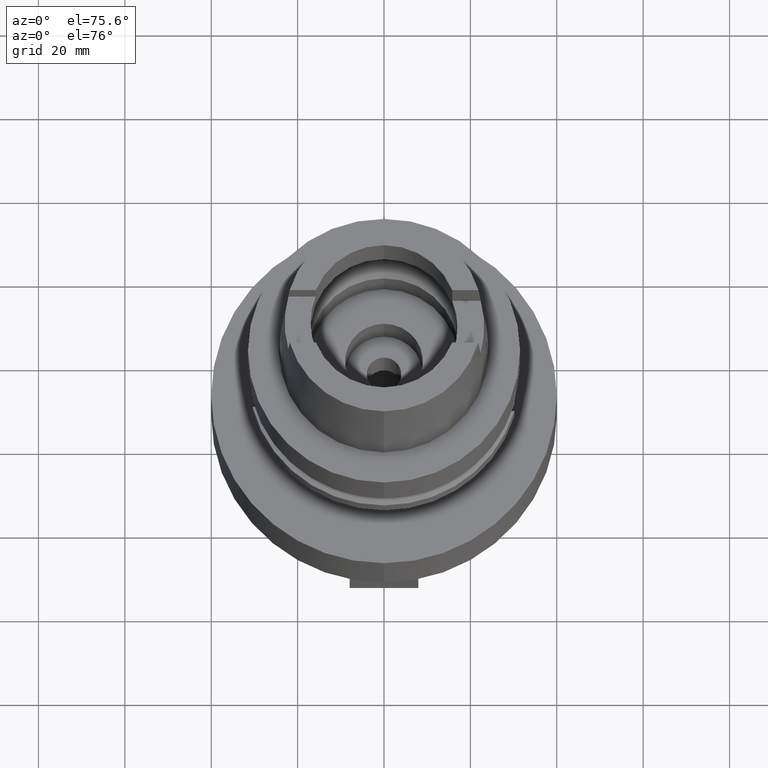
[diagram: clean part render]
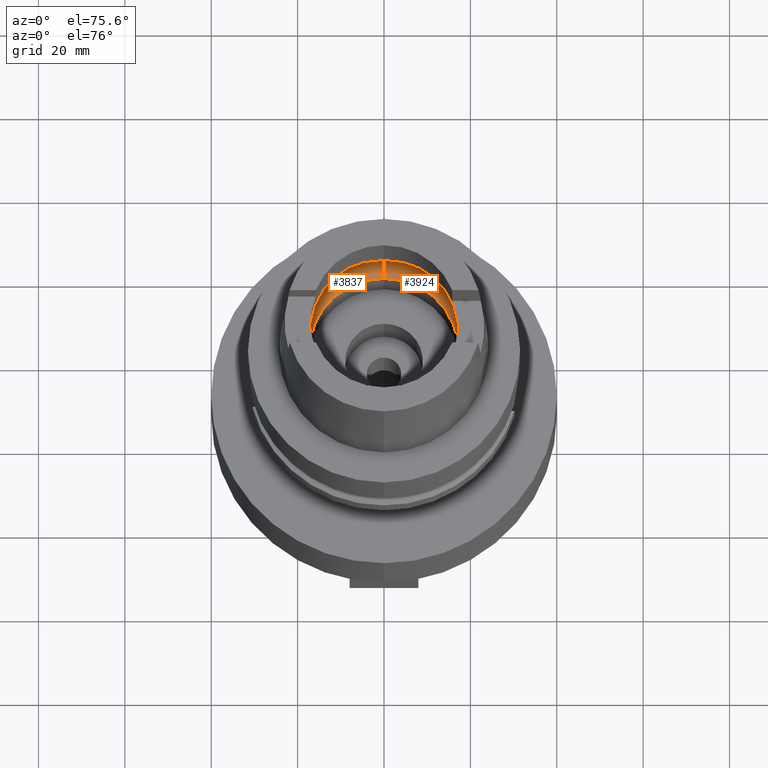
[diagram: same view with one multi-face feature highlighted, each face labeled with its STEP entity id]
A machine part, auxiliary view. The highlighted faces form ONE feature: a constant-radius fillet chain: 2 tangent blend faces with common blend radius 8 mm. The faces share edges in the B-rep.
Their STEP definitions:
[1] entity #3837 (Torus):
#1773=CARTESIAN_POINT('',(-1.984575864666E1,-2.479085262491E0,
6.186348233825E0));
#1774=CARTESIAN_POINT('',(-1.987369637762E1,-2.255436050342E0,
5.989292765742E0));
#1775=CARTESIAN_POINT('',(-1.991331581871E1,-1.759133185383E0,
5.647057889337E0));
#1776=CARTESIAN_POINT('',(-1.994018615095E1,-9.060425565455E-1,
5.323295534197E0));
#1777=CARTESIAN_POINT('',(-1.994501428476E1,-3.022936309386E-1,5.25E0));
#1778=CARTESIAN_POINT('',(-1.994501428476E1,0.E0,5.25E0));
#1783=CARTESIAN_POINT('',(-1.994501428476E1,0.E0,5.25E0));
#1784=CARTESIAN_POINT('',(-1.994501428476E1,3.022931930043E-1,5.25E0));
#1785=CARTESIAN_POINT('',(-1.994018614423E1,9.060414364937E-1,
5.323295523152E0));
#1786=CARTESIAN_POINT('',(-1.991331601589E1,1.759129035713E0,5.647055777419E0));
#1787=CARTESIAN_POINT('',(-1.987369656375E1,2.255434560347E0,5.989291452920E0));
#1788=CARTESIAN_POINT('',(-1.984575864666E1,2.479085262491E0,6.186348233825E0));
#1793=CARTESIAN_POINT('',(0.E0,0.E0,6.186348233825E0));
#1794=DIRECTION('',(0.E0,0.E0,-1.E0));
#1795=DIRECTION('',(-9.922879323328E-1,1.239542631245E-1,0.E0));
#1796=AXIS2_PLACEMENT_3D('',#1793,#1794,#1795);
#1801=CARTESIAN_POINT('',(0.E0,0.E0,1.500000000001E-1));
#1802=DIRECTION('',(0.E0,0.E0,1.E0));
#1803=DIRECTION('',(0.E0,1.E0,0.E0));
#1804=AXIS2_PLACEMENT_3D('',#1801,#1802,#1803);
#1809=CARTESIAN_POINT('',(0.E0,-1.2E1,6.186348233825E0));
#1810=DIRECTION('',(-1.E0,0.E0,0.E0));
#1811=DIRECTION('',(0.E0,-6.5625E-1,-7.545435292281E-1));
#1812=AXIS2_PLACEMENT_3D('',#1809,#1810,#1811);
#1817=CARTESIAN_POINT('',(0.E0,0.E0,6.186348233825E0));
#1818=DIRECTION('',(0.E0,0.E0,-1.E0));
#1819=DIRECTION('',(0.E0,-1.E0,0.E0));
#1820=AXIS2_PLACEMENT_3D('',#1817,#1818,#1819);
#1843=CARTESIAN_POINT('',(-1.984575864666E1,-2.479085262491E0,
6.186348233825E0));
#1943=CARTESIAN_POINT('',(0.E0,1.2E1,6.186348233825E0));
#1944=DIRECTION('',(1.E0,0.E0,0.E0));
#1945=DIRECTION('',(0.E0,6.5625E-1,-7.545435292281E-1));
#1946=AXIS2_PLACEMENT_3D('',#1943,#1944,#1945);
#2224=VERTEX_POINT('',#1843);
#2225=CARTESIAN_POINT('',(0.E0,-2.E1,6.186348233825E0));
#2226=VERTEX_POINT('',#2225);
#2227=CARTESIAN_POINT('',(0.E0,2.E1,6.186348233825E0));
#2228=VERTEX_POINT('',#2227);
#2229=CARTESIAN_POINT('',(-1.984575864666E1,2.479085262490E0,6.186348233825E0));
#2230=VERTEX_POINT('',#2229);
#2231=CARTESIAN_POINT('',(-1.994501428476E1,0.E0,5.25E0));
#2232=VERTEX_POINT('',#2231);
#2237=CARTESIAN_POINT('',(0.E0,1.725E1,1.500000000001E-1));
#2238=VERTEX_POINT('',#2237);
#2239=CARTESIAN_POINT('',(0.E0,-1.725E1,1.500000000001E-1));
#2240=VERTEX_POINT('',#2239);
#3817=CARTESIAN_POINT('',(0.E0,0.E0,6.186348233825E0));
#3818=DIRECTION('',(0.E0,0.E0,1.E0));
#3819=DIRECTION('',(0.E0,1.E0,0.E0));
#3820=AXIS2_PLACEMENT_3D('',#3817,#3818,#3819);
#3821=TOROIDAL_SURFACE('',#3820,1.2E1,8.E0);
#3823=ORIENTED_EDGE('',*,*,#3822,.T.);
#3825=ORIENTED_EDGE('',*,*,#3824,.T.);
#3827=ORIENTED_EDGE('',*,*,#3826,.T.);
#3829=ORIENTED_EDGE('',*,*,#3828,.F.);
#3830=ORIENTED_EDGE('',*,*,#3812,.T.);
#3832=ORIENTED_EDGE('',*,*,#3831,.T.);
#3834=ORIENTED_EDGE('',*,*,#3833,.T.);
#3835=EDGE_LOOP('',(#3823,#3825,#3827,#3829,#3830,#3832,#3834));
#3836=FACE_OUTER_BOUND('',#3835,.F.);
#1779=B_SPLINE_CURVE_WITH_KNOTS('',3,(#1773,#1774,#1775,#1776,#1777,#1778),
.UNSPECIFIED.,.F.,.F.,(4,1,1,4),(0.E0,3.333333333333E-1,6.666666666667E-1,1.E0),
.UNSPECIFIED.);
#1789=B_SPLINE_CURVE_WITH_KNOTS('',3,(#1783,#1784,#1785,#1786,#1787,#1788),
.UNSPECIFIED.,.F.,.F.,(4,1,1,4),(0.E0,3.333333333333E-1,6.666666666667E-1,1.E0),
.UNSPECIFIED.);
#1797=CIRCLE('',#1796,2.E1);
#1805=CIRCLE('',#1804,1.725E1);
#1813=CIRCLE('',#1812,8.E0);
#1821=CIRCLE('',#1820,2.E1);
#1947=CIRCLE('',#1946,8.E0);
#3812=EDGE_CURVE('',#2238,#2240,#1805,.T.);
#3822=EDGE_CURVE('',#2224,#2232,#1779,.T.);
#3824=EDGE_CURVE('',#2232,#2230,#1789,.T.);
#3826=EDGE_CURVE('',#2230,#2228,#1797,.T.);
#3828=EDGE_CURVE('',#2238,#2228,#1947,.T.);
#3831=EDGE_CURVE('',#2240,#2226,#1813,.T.);
#3833=EDGE_CURVE('',#2226,#2224,#1821,.T.);
#3837=ADVANCED_FACE('',(#3836),#3821,.F.);
[2] entity #3924 (Torus):
#1809=CARTESIAN_POINT('',(0.E0,-1.2E1,6.186348233825E0));
#1810=DIRECTION('',(-1.E0,0.E0,0.E0));
#1811=DIRECTION('',(0.E0,-6.5625E-1,-7.545435292281E-1));
#1812=AXIS2_PLACEMENT_3D('',#1809,#1810,#1811);
#1871=CARTESIAN_POINT('',(1.984575864666E1,-2.479085262491E0,6.186348233825E0));
#1898=CARTESIAN_POINT('',(1.984575864666E1,2.479085262491E0,6.186348233825E0));
#1917=CARTESIAN_POINT('',(1.994501428476E1,0.E0,5.25E0));
#1918=CARTESIAN_POINT('',(1.994501428476E1,-3.022957154465E-1,5.25E0));
#1919=CARTESIAN_POINT('',(1.994018609693E1,-9.060474356404E-1,
5.323296439589E0));
#1920=CARTESIAN_POINT('',(1.991331550025E1,-1.759139202252E0,5.647061182125E0));
#1921=CARTESIAN_POINT('',(1.987369610543E1,-2.255438229266E0,5.989294685574E0));
#1922=CARTESIAN_POINT('',(1.984575864666E1,-2.479085262491E0,6.186348233825E0));
#1927=CARTESIAN_POINT('',(0.E0,0.E0,6.186348233825E0));
#1928=DIRECTION('',(0.E0,0.E0,-1.E0));
#1929=DIRECTION('',(9.922879323328E-1,-1.239542631245E-1,0.E0));
#1930=AXIS2_PLACEMENT_3D('',#1927,#1928,#1929);
#1935=CARTESIAN_POINT('',(0.E0,0.E0,1.500000000001E-1));
#1936=DIRECTION('',(0.E0,0.E0,1.E0));
#1937=DIRECTION('',(0.E0,-1.E0,0.E0));
#1938=AXIS2_PLACEMENT_3D('',#1935,#1936,#1937);
#1943=CARTESIAN_POINT('',(0.E0,1.2E1,6.186348233825E0));
#1944=DIRECTION('',(1.E0,0.E0,0.E0));
#1945=DIRECTION('',(0.E0,6.5625E-1,-7.545435292281E-1));
#1946=AXIS2_PLACEMENT_3D('',#1943,#1944,#1945);
#1951=CARTESIAN_POINT('',(0.E0,0.E0,6.186348233825E0));
#1952=DIRECTION('',(0.E0,0.E0,-1.E0));
#1953=DIRECTION('',(0.E0,1.E0,0.E0));
#1954=AXIS2_PLACEMENT_3D('',#1951,#1952,#1953);
#1959=CARTESIAN_POINT('',(1.984575864666E1,2.479085262491E0,6.186348233825E0));
#1960=CARTESIAN_POINT('',(1.987369683552E1,2.255432384732E0,5.989289536004E0));
#1961=CARTESIAN_POINT('',(1.991331633330E1,1.759123026949E0,5.647052493715E0));
#1962=CARTESIAN_POINT('',(1.994018619685E1,9.060366292765E-1,5.323294636829E0));
#1963=CARTESIAN_POINT('',(1.994501428476E1,3.022911403854E-1,5.25E0));
#1964=CARTESIAN_POINT('',(1.994501428476E1,0.E0,5.25E0));
#2225=CARTESIAN_POINT('',(0.E0,-2.E1,6.186348233825E0));
#2226=VERTEX_POINT('',#2225);
#2227=CARTESIAN_POINT('',(0.E0,2.E1,6.186348233825E0));
#2228=VERTEX_POINT('',#2227);
#2233=VERTEX_POINT('',#1871);
#2235=VERTEX_POINT('',#1917);
#2236=VERTEX_POINT('',#1898);
#2237=CARTESIAN_POINT('',(0.E0,1.725E1,1.500000000001E-1));
#2238=VERTEX_POINT('',#2237);
#2239=CARTESIAN_POINT('',(0.E0,-1.725E1,1.500000000001E-1));
#2240=VERTEX_POINT('',#2239);
#3909=CARTESIAN_POINT('',(0.E0,0.E0,6.186348233825E0));
#3910=DIRECTION('',(0.E0,0.E0,1.E0));
#3911=DIRECTION('',(0.E0,1.E0,0.E0));
#3912=AXIS2_PLACEMENT_3D('',#3909,#3910,#3911);
#3913=TOROIDAL_SURFACE('',#3912,1.2E1,8.E0);
#3914=ORIENTED_EDGE('',*,*,#3899,.T.);
#3915=ORIENTED_EDGE('',*,*,#3888,.T.);
#3916=ORIENTED_EDGE('',*,*,#3831,.F.);
#3917=ORIENTED_EDGE('',*,*,#3796,.T.);
#3918=ORIENTED_EDGE('',*,*,#3828,.T.);
#3919=ORIENTED_EDGE('',*,*,#3882,.T.);
#3921=ORIENTED_EDGE('',*,*,#3920,.T.);
#3922=EDGE_LOOP('',(#3914,#3915,#3916,#3917,#3918,#3919,#3921));
#3923=FACE_OUTER_BOUND('',#3922,.F.);
#1813=CIRCLE('',#1812,8.E0);
#1923=B_SPLINE_CURVE_WITH_KNOTS('',3,(#1917,#1918,#1919,#1920,#1921,#1922),
.UNSPECIFIED.,.F.,.F.,(4,1,1,4),(0.E0,3.333333333333E-1,6.666666666667E-1,1.E0),
.UNSPECIFIED.);
#1931=CIRCLE('',#1930,2.E1);
#1939=CIRCLE('',#1938,1.725E1);
#1947=CIRCLE('',#1946,8.E0);
#1955=CIRCLE('',#1954,2.E1);
#1965=B_SPLINE_CURVE_WITH_KNOTS('',3,(#1959,#1960,#1961,#1962,#1963,#1964),
.UNSPECIFIED.,.F.,.F.,(4,1,1,4),(0.E0,3.333333333333E-1,6.666666666667E-1,1.E0),
.UNSPECIFIED.);
#3796=EDGE_CURVE('',#2240,#2238,#1939,.T.);
#3828=EDGE_CURVE('',#2238,#2228,#1947,.T.);
#3831=EDGE_CURVE('',#2240,#2226,#1813,.T.);
#3882=EDGE_CURVE('',#2228,#2236,#1955,.T.);
#3888=EDGE_CURVE('',#2233,#2226,#1931,.T.);
#3899=EDGE_CURVE('',#2235,#2233,#1923,.T.);
#3920=EDGE_CURVE('',#2236,#2235,#1965,.T.);
#3924=ADVANCED_FACE('',(#3923),#3913,.F.);